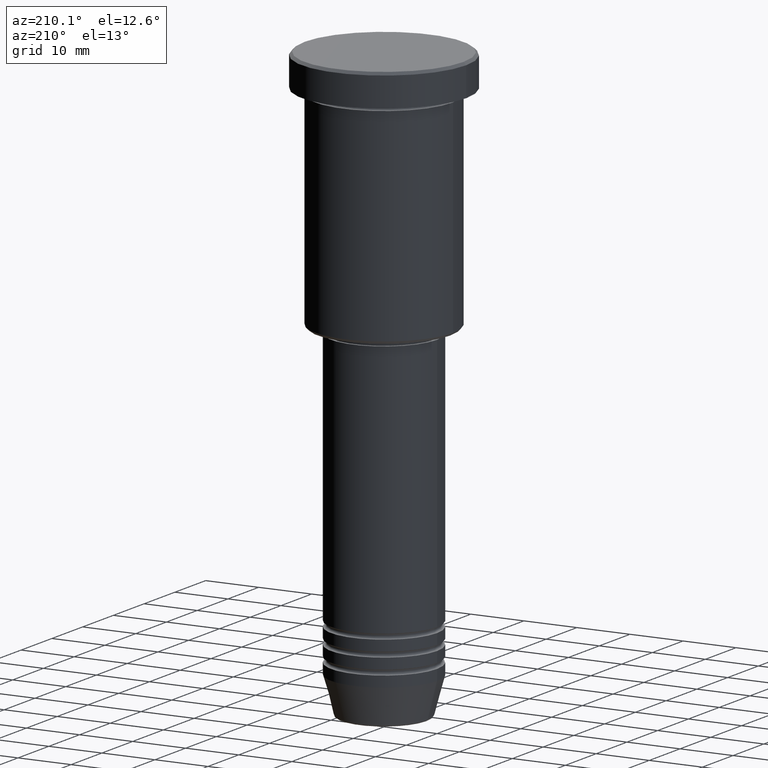
[diagram: clean part render]
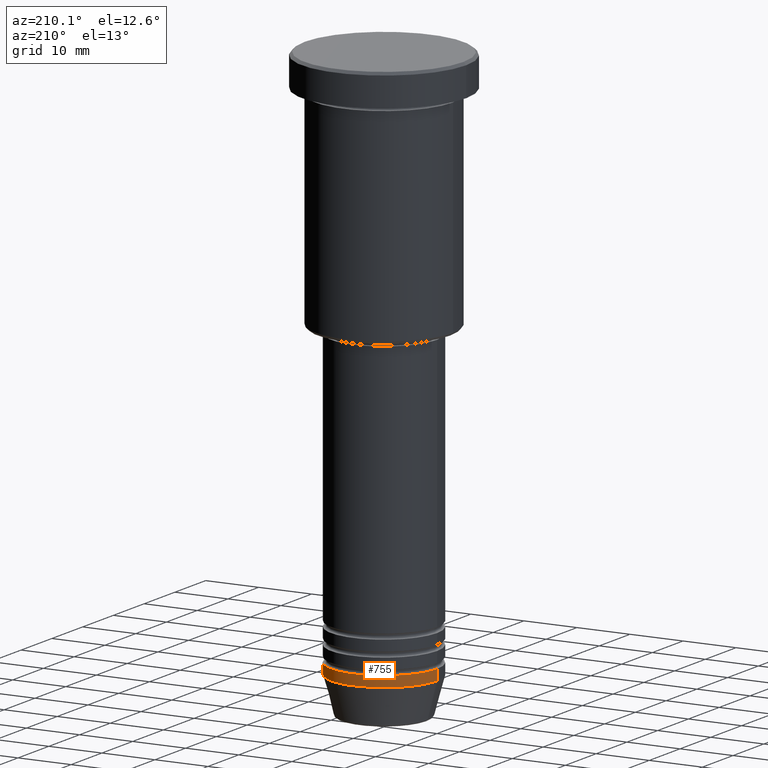
[diagram: same view with one face highlighted and labeled with its STEP entity id]
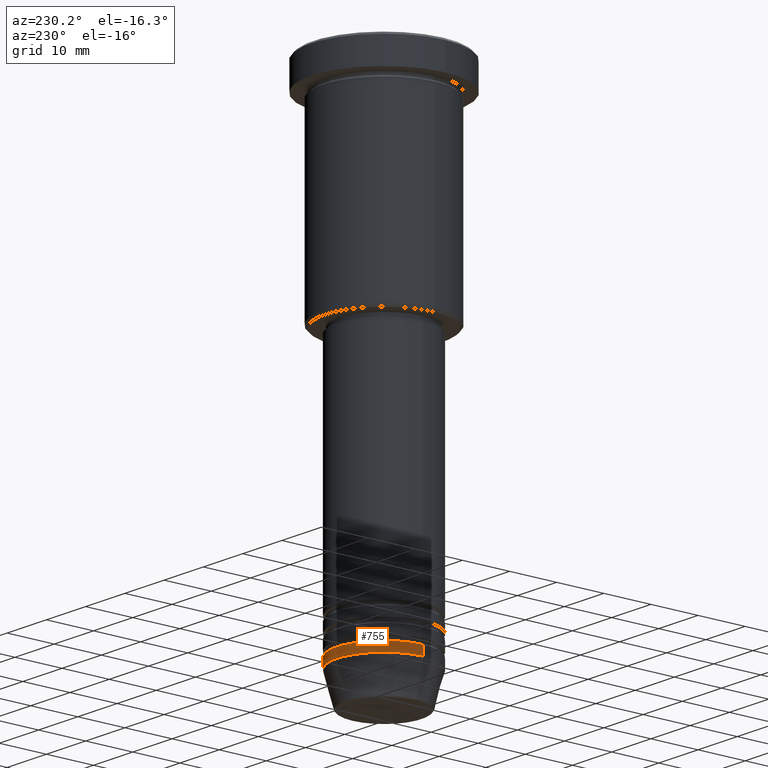
[diagram: same view with one face highlighted and labeled with its STEP entity id]
A machine part, auxiliary view. The second image highlights one B-rep face of the part: STEP entity #755.
A second angle (auxiliary view) of the same face is appended — the face is thin or edge-on in the first view.
In plain terms, the highlighted cylindrical surface (partial cylindrical patch) has radius 10 mm, axis along (-0, -0, 1).
Its self-contained STEP definition (entity closure, byte-faithful):
#7 = VECTOR ( 'NONE', #330, 1000.000000000000000 ) ;
#70 = CARTESIAN_POINT ( 'NONE',  ( -10.00000000000000000, 1.224646799147353256E-15, -104.0000000000000142 ) ) ;
#93 = VECTOR ( 'NONE', #370, 1000.000000000000000 ) ;
#101 = DIRECTION ( 'NONE',  ( -0.000000000000000000, -0.000000000000000000, 1.000000000000000000 ) ) ;
#104 = CYLINDRICAL_SURFACE ( 'NONE', #735, 10.00000000000000000 ) ;
#106 = EDGE_CURVE ( 'NONE', #851, #209, #608, .T. ) ;
#163 = EDGE_LOOP ( 'NONE', ( #183, #314, #533, #462 ) ) ;
#183 = ORIENTED_EDGE ( 'NONE', *, *, #106, .T. ) ;
#209 = VERTEX_POINT ( 'NONE', #70 ) ;
#238 = VERTEX_POINT ( 'NONE', #917 ) ;
#253 = CARTESIAN_POINT ( 'NONE',  ( 10.00000000000000000, 0.000000000000000000, 0.000000000000000000 ) ) ;
#302 = AXIS2_PLACEMENT_3D ( 'NONE', #910, #446, #713 ) ;
#314 = ORIENTED_EDGE ( 'NONE', *, *, #1162, .T. ) ;
#330 = DIRECTION ( 'NONE',  ( -0.000000000000000000, -0.000000000000000000, 1.000000000000000000 ) ) ;
#370 = DIRECTION ( 'NONE',  ( -0.000000000000000000, -0.000000000000000000, 1.000000000000000000 ) ) ;
#372 = FACE_OUTER_BOUND ( 'NONE', #163, .T. ) ;
#394 = CIRCLE ( 'NONE', #302, 10.00000000000000000 ) ;
#446 = DIRECTION ( 'NONE',  ( -0.000000000000000000, -0.000000000000000000, 1.000000000000000000 ) ) ;
#454 = DIRECTION ( 'NONE',  ( 1.000000000000000000, 0.000000000000000000, 0.000000000000000000 ) ) ;
#460 = CARTESIAN_POINT ( 'NONE',  ( 0.000000000000000000, 0.000000000000000000, 0.000000000000000000 ) ) ;
#462 = ORIENTED_EDGE ( 'NONE', *, *, #578, .F. ) ;
#503 = CARTESIAN_POINT ( 'NONE',  ( 10.00000000000000000, 0.000000000000000000, -104.0000000000000142 ) ) ;
#533 = ORIENTED_EDGE ( 'NONE', *, *, #1095, .F. ) ;
#573 = CARTESIAN_POINT ( 'NONE',  ( -10.00000000000000000, 1.224646799147353256E-15, 0.000000000000000000 ) ) ;
#578 = EDGE_CURVE ( 'NONE', #851, #793, #977, .T. ) ;
#608 = CIRCLE ( 'NONE', #678, 10.00000000000000000 ) ;
#678 = AXIS2_PLACEMENT_3D ( 'NONE', #797, #698, #891 ) ;
#698 = DIRECTION ( 'NONE',  ( -0.000000000000000000, -0.000000000000000000, 1.000000000000000000 ) ) ;
#713 = DIRECTION ( 'NONE',  ( 1.000000000000000000, 0.000000000000000000, 0.000000000000000000 ) ) ;
#735 = AXIS2_PLACEMENT_3D ( 'NONE', #460, #101, #454 ) ;
#755 = ADVANCED_FACE ( 'NONE', ( #372 ), #104, .T. ) ;
#793 = VERTEX_POINT ( 'NONE', #990 ) ;
#797 = CARTESIAN_POINT ( 'NONE',  ( 0.000000000000000000, 0.000000000000000000, -104.0000000000000142 ) ) ;
#851 = VERTEX_POINT ( 'NONE', #503 ) ;
#891 = DIRECTION ( 'NONE',  ( 1.000000000000000000, 0.000000000000000000, 0.000000000000000000 ) ) ;
#910 = CARTESIAN_POINT ( 'NONE',  ( 0.000000000000000000, 0.000000000000000000, -102.0000000000000142 ) ) ;
#917 = CARTESIAN_POINT ( 'NONE',  ( -10.00000000000000000, 1.224646799147353256E-15, -102.0000000000000142 ) ) ;
#930 = LINE ( 'NONE', #573, #93 ) ;
#977 = LINE ( 'NONE', #253, #7 ) ;
#990 = CARTESIAN_POINT ( 'NONE',  ( 10.00000000000000000, 0.000000000000000000, -102.0000000000000142 ) ) ;
#1095 = EDGE_CURVE ( 'NONE', #793, #238, #394, .T. ) ;
#1162 = EDGE_CURVE ( 'NONE', #209, #238, #930, .T. ) ;